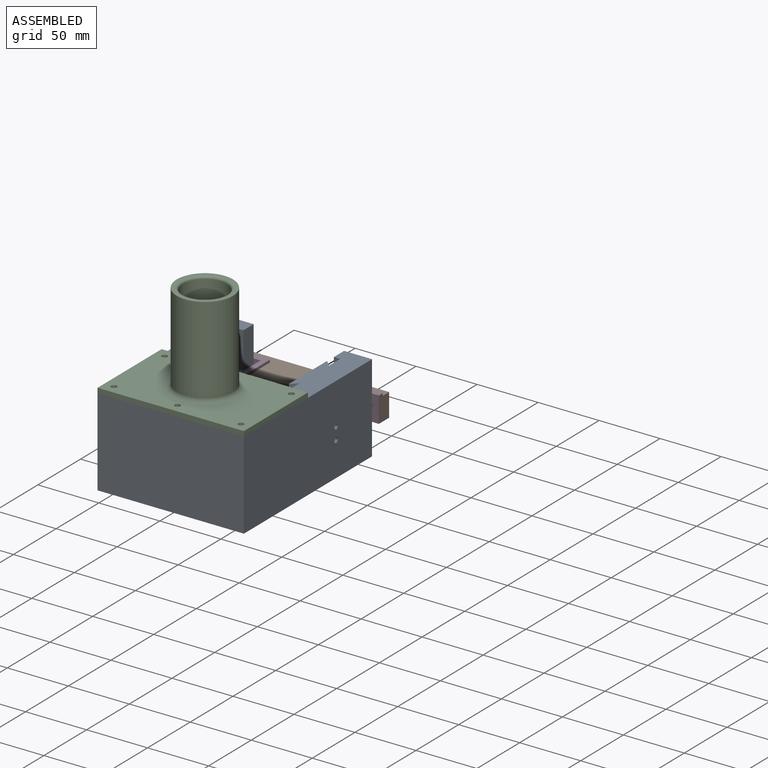
[diagram: assembled view]
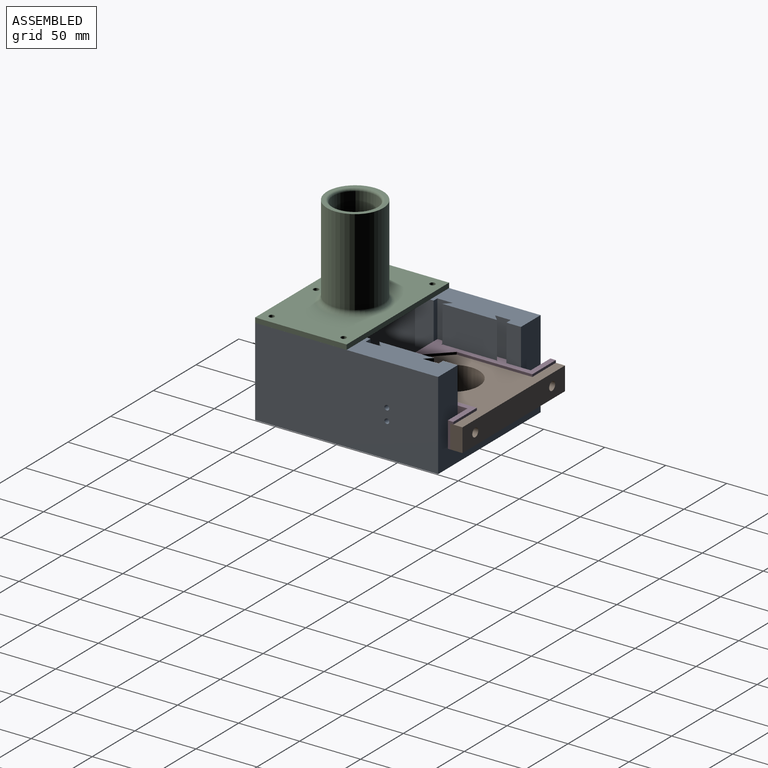
[diagram: assembled view, second angle]
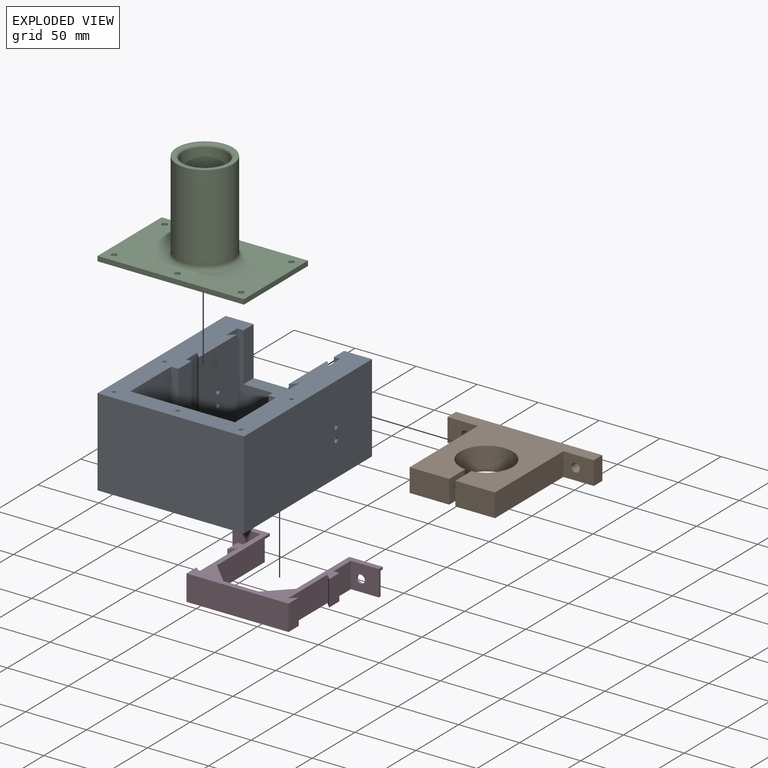
[diagram: exploded view]
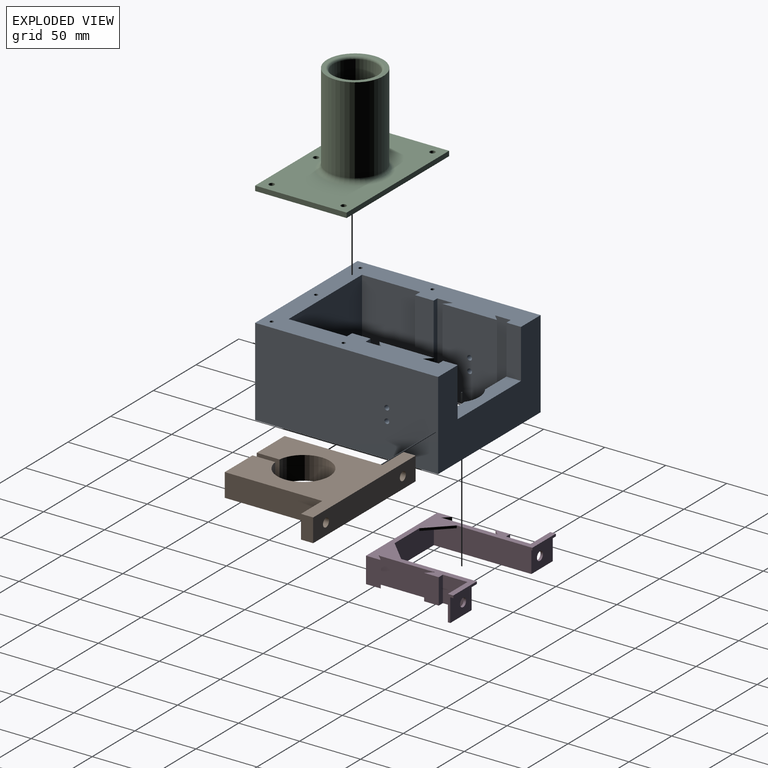
[diagram: exploded view, second angle]
ASSEMBLY  parts=4 mates=3
PART A: 68 faces, bbox 120x150x72 mm
  f0: plane 84x70mm, normal (0,1,0), area 1816.8mm2, adj f1,f8,f9,f27,f40,f41,f43
  f1: plane 102x68.7mm, normal (0,0,-1), area 2309.8mm2, adj f0,f7,f8,f9,f10,f11,f12,f13
  f2: plane 40x11.95mm, normal (1,0,0), area 478mm2, adj f16,f20,f27,f29
  f3: plane 40x11.95mm, normal (-1,0,0), area 478mm2, adj f20,f21,f27,f29
  f4: plane 85.88x70mm, normal (0,-1,0), area 2317.5mm2, adj f5,f26,f27,f40,f41,f42,f44
  f5: plane 70x47.8mm, normal (-1,0,0), area 3346mm2, adj f4,f6,f27,f44
  f6: plane 85.88x70mm, normal (0,1,0), area 6011.3mm2, adj f5,f26,f27,f44
  f7: plane 70x5.15mm, normal (0.71,-0.71,0), area 509.8mm2, adj f1,f8,f25,f27
  f8: plane 70x12.7mm, normal (-1,0,0), area 889.1mm2, adj f0,f1,f7,f27
  f9: plane 70x12.7mm, normal (1,0,0), area 889.1mm2, adj f0,f1,f10,f27
  f10: plane 70x5.15mm, normal (-0.71,-0.71,0), area 509.8mm2, adj f1,f9,f11,f27
  f11: plane 70x44.9mm, normal (1,0,0), area 3117.9mm2, adj f1,f10,f12,f27,f56,f57
  f12: plane 70x5.15mm, normal (-0.71,0.71,0), area 509.8mm2, adj f1,f11,f13,f27
  f13: plane 70x0.06mm, normal (1,0,0), area 4.5mm2, adj f1,f12,f14,f27
  f14: plane 70x0.1mm, normal (0,1,0), area 7mm2, adj f1,f13,f15,f27
  f15: plane 70x12.68mm, normal (1,0,0), area 887.9mm2, adj f1,f14,f16,f27
  f16: plane 70x30.09mm, normal (0,-1,0), area 1104.6mm2, adj f1,f2,f15,f27,f28,f29
  f17: plane 150x72mm, normal (-1,0,0), area 10774.9mm2, adj f18,f20,f27,f45,f56,f57
  f18: plane 120x72mm, normal (0,-1,0), area 8640mm2, adj f17,f19,f27,f45
  f19: plane 150x72mm, normal (1,0,0), area 10774.9mm2, adj f18,f20,f27,f45,f58,f59
  f20: plane 120x72mm, normal (0,1,0), area 5676mm2, adj f2,f3,f17,f19,f27,f29,f45
  f21: plane 70x30.18mm, normal (0,-1,0), area 1111.5mm2, adj f1,f3,f22,f27,f28,f29
  f22: plane 70x12.75mm, normal (-1,0,0), area 892.4mm2, adj f1,f21,f23,f27
  f23: plane 70x0.2mm, normal (0,1,0), area 14mm2, adj f1,f22,f24,f27
  f24: plane 70x5.15mm, normal (0.71,0.71,0), area 509.8mm2, adj f1,f23,f25,f27
  f25: plane 70x44.9mm, normal (-1,0,0), area 3117.9mm2, adj f1,f7,f24,f27,f58,f59
  f26: plane 70x47.8mm, normal (1,0,0), area 3346mm2, adj f4,f6,f27,f44
  f27: plane 150x120mm, normal (0,0,1), area 7212.8mm2, adj f0,f2,f3,f4,f5,f6,f7,f8
  f28: cylinder r=21.5mm len=30mm, axis (0,0,-1), area 643.7mm2, adj f1,f16,f21,f29,f30,f38,f65
  f29: plane 74.1x11.95mm, normal (0,0,1), area 825.6mm2, adj f2,f3,f16,f20,f21,f28
  f30: plane 47.92x19.5mm, normal (0,1,0), area 934.5mm2, adj f1,f28,f31,f65
  f31: plane 68.7x19.5mm, normal (-1,0,0), area 1339.7mm2, adj f1,f30,f32,f64
  f32: plane 102x19.5mm, normal (0,-1,0), area 1989mm2, adj f1,f31,f33,f62
  f33: plane 68.7x19.5mm, normal (1,0,0), area 1339.7mm2, adj f1,f32,f38,f67
  f34: plane 78.7x21.5mm, normal (-1,0,0), area 1692mm2, adj f35,f37,f45,f66
  f35: plane 112x21.5mm, normal (0,1,0), area 2408mm2, adj f34,f36,f45,f60
  f36: plane 78.7x21.5mm, normal (1,0,0), area 1692mm2, adj f35,f37,f45,f61
  f37: plane 112x21.5mm, normal (0,-1,0), area 2408mm2, adj f34,f36,f45,f63
  f38: plane 47.92x19.5mm, normal (0,1,0), area 934.5mm2, adj f1,f28,f33,f65
  f39: plane 73.88x0.7mm, normal (0,0,1), area 51.7mm2, adj f40,f41,f43,f62
  f40: plane 55x15.2mm, normal (-1,0,0), area 761.4mm2, adj f0,f4,f27,f39,f42,f43,f60,f62
  f41: plane 55x15.2mm, normal (1,0,0), area 761.4mm2, adj f0,f4,f27,f39,f42,f43,f60,f62
  f42: plane 73.88x5.5mm, normal (0,0,1), area 406.3mm2, adj f4,f40,f41,f60
  f43: cylinder r=5mm len=73.88mm, axis (1,0,0), area 580.2mm2, adj f0,f39,f40,f41
  f44: plane 85.88x47.8mm, normal (0,0,1), area 4104.9mm2, adj f4,f5,f6,f26
  f45: plane 150x120mm, normal (0,0,-1), area 9185.6mm2, adj f17,f18,f19,f20,f34,f35,f36,f37
  f46: cylinder r=1.5mm len=14mm, axis (0,0,1), area 131.9mm2, adj f27,f47
  f47: plane 3x3mm, normal (0,0,1), area 7.1mm2, adj f46
  f48: cylinder r=1.5mm len=14mm, axis (0,0,1), area 131.9mm2, adj f27,f49
  f49: plane 3x3mm, normal (0,0,1), area 7.1mm2, adj f48
  f50: cylinder r=1.5mm len=14mm, axis (0,0,1), area 131.9mm2, adj f27,f51
  f51: plane 3x3mm, normal (0,0,1), area 7.1mm2, adj f50
  f52: cylinder r=1.5mm len=14mm, axis (0,0,1), area 131.9mm2, adj f27,f53
  f53: plane 3x3mm, normal (0,0,1), area 7.1mm2, adj f52
  f54: cylinder r=1.5mm len=14mm, axis (0,0,1), area 131.9mm2, adj f27,f55
  f55: plane 3x3mm, normal (0,0,1), area 7.1mm2, adj f54
  f56: cylinder r=2mm len=23.15mm, axis (-1,0,0), area 290.9mm2, adj f11,f17
  f57: cylinder r=2mm len=23.15mm, axis (-1,0,0), area 290.9mm2, adj f11,f17
  f58: cylinder r=2mm len=23.15mm, axis (1,0,0), area 290.9mm2, adj f19,f25
  f59: cylinder r=2mm len=23.15mm, axis (1,0,0), area 290.9mm2, adj f19,f25
  f60: plane 112x2.5mm, normal (0,0.71,-0.71), area 178.2mm2, adj f35,f40,f41,f42,f61,f62,f66
  f61: plane 78.7x2.5mm, normal (0.71,0,-0.71), area 269.4mm2, adj f36,f60,f63,f64
  f62: plane 107x2.5mm, normal (0,-0.71,-0.71), area 160.5mm2, adj f32,f39,f40,f41,f60,f64,f67
  f63: plane 112x2.5mm, normal (0,-0.71,-0.71), area 387.1mm2, adj f37,f61,f65,f66
  f64: plane 73.7x2.5mm, normal (-0.71,0,-0.71), area 251.7mm2, adj f31,f61,f62,f65
  f65: plane 107x2.5mm, normal (0,0.71,-0.71), area 368.2mm2, adj f28,f30,f38,f63,f64,f67
  f66: plane 78.7x2.5mm, normal (-0.71,0,-0.71), area 269.4mm2, adj f34,f60,f63,f67
  f67: plane 73.7x2.5mm, normal (0.71,0,-0.71), area 251.7mm2, adj f33,f62,f65,f66
PART B: 16 faces, bbox 120x90x19.1 mm
  f0: plane 32.5x19.05mm, normal (0,-1,0), area 619.1mm2, adj f1,f11,f12,f13
  f1: plane 19.05x18.65mm, normal (1,0,0), area 355.2mm2, adj f0,f2,f12,f13
  f2: cylinder r=21.5mm len=43mm, axis (0,0,-1), area 2478mm2, adj f1,f3,f12,f13
  f3: plane 19.05x18.65mm, normal (-1,0,0), area 355.2mm2, adj f2,f4,f12,f13
  f4: plane 32.5x19.05mm, normal (0,-1,0), area 619.1mm2, adj f3,f5,f12,f13
  f5: plane 80x19.05mm, normal (1,0,0), area 1524mm2, adj f4,f6,f12,f13
  f6: plane 25x19.05mm, normal (0,-1,0), area 437.8mm2, adj f5,f7,f12,f13,f15
  f7: plane 19.05x10mm, normal (1,0,0), area 190.5mm2, adj f6,f8,f12,f13
  f8: plane 120x19.05mm, normal (0,1,0), area 2209mm2, adj f7,f9,f12,f13,f14,f15
  f9: plane 19.05x10mm, normal (-1,0,0), area 190.5mm2, adj f8,f10,f12,f13
  f10: plane 25x19.05mm, normal (0,-1,0), area 437.8mm2, adj f9,f11,f12,f13,f14
  f11: plane 80x19.05mm, normal (-1,0,0), area 1524mm2, adj f0,f10,f12,f13
  f12: plane 120x90mm, normal (0,0,1), area 5255.1mm2, adj f0,f1,f2,f3,f4,f5,f6,f7
  f13: plane 120x90mm, normal (0,0,-1), area 5255.1mm2, adj f0,f1,f2,f3,f4,f5,f6,f7
  f14: cylinder r=3.5mm len=10mm, axis (0,1,0), area 219.9mm2, adj f8,f10
  f15: cylinder r=3.5mm len=10mm, axis (0,1,0), area 219.9mm2, adj f6,f8
PART C: 19 faces, bbox 120x75x79 mm
  f0: cylinder r=18mm len=36mm, axis (0,0,-1), area 3619.1mm2, adj f16,f18
  f1: plane 75x4mm, normal (-1,0,0), area 300mm2, adj f2,f8,f10,f11
  f2: plane 120x4mm, normal (0,-1,0), area 480mm2, adj f1,f3,f10,f11
  f3: plane 75x4mm, normal (1,0,0), area 300mm2, adj f2,f8,f10,f11
  f4: cylinder r=2.25mm len=4.5mm, axis (0,0,-1), area 56.5mm2, adj f10,f11
  f5: cylinder r=2.25mm len=4.5mm, axis (0,0,-1), area 56.5mm2, adj f10,f11
  f6: cylinder r=2.25mm len=4.5mm, axis (0,0,-1), area 56.5mm2, adj f10,f11
  f7: cylinder r=2.25mm len=4.5mm, axis (0,0,-1), area 56.5mm2, adj f10,f11
  f8: plane 120x4mm, normal (0,1,0), area 480mm2, adj f1,f3,f10,f11
  f9: cylinder r=2.25mm len=4.5mm, axis (0,0,-1), area 56.5mm2, adj f10,f11
  f10: plane 120x75mm, normal (0,0,1), area 6630.3mm2, adj f1,f2,f3,f4,f5,f6,f7,f8
  f11: plane 120x75mm, normal (0,0,-1), area 7567.8mm2, adj f1,f2,f3,f4,f5,f6,f7,f8
  f12: cylinder r=23mm len=71mm, axis (0,0,-1), area 10260.4mm2, adj f13,f14
  f13: plane 46x46mm, normal (0,0,1), area 405.3mm2, adj f12,f18
  f14: torus R=27mm, axis (0,0,1), area 965.4mm2, adj f10,f12
  f15: cylinder r=17.75mm len=42mm, axis (0,0,-1), area 4684.1mm2, adj f16,f17
  f16: plane 36x36mm, normal (0,0,1), area 28.1mm2, adj f0,f15
  f17: torus R=20.75mm, axis (0,0,1), area 557.8mm2, adj f11,f15
  f18: torus R=20mm, axis (0,0,1), area 369.7mm2, adj f0,f13
PART D: 40 faces, bbox 120x84.3x21.1 mm
  f0: plane 120x84.3mm, normal (0,0,1), area 1734.7mm2, adj f2,f3,f9,f10,f11,f12,f16,f17
  f1: plane 120x81.8mm, normal (0,0,-1), area 710.7mm2, adj f2,f3,f4,f5,f6,f7,f8,f9
  f2: plane 21.05x20.2mm, normal (-1,0,0), area 425.2mm2, adj f0,f1,f10,f27
  f3: plane 21.05x4.5mm, normal (1,0,0), area 47.1mm2, adj f0,f1,f4,f12,f15,f16
  f4: plane 25x19.05mm, normal (0,1,0), area 437.8mm2, adj f1,f3,f5,f13,f15
  f5: plane 80x19.05mm, normal (-1,0,0), area 1524mm2, adj f1,f4,f6,f15
  f6: plane 70x19.05mm, normal (0,1,0), area 1333.5mm2, adj f1,f5,f7,f15
  f7: plane 80x19.05mm, normal (1,0,0), area 1524mm2, adj f1,f6,f8,f15
  f8: plane 25x19.05mm, normal (0,1,0), area 437.8mm2, adj f1,f7,f9,f14,f15
  f9: plane 21.05x4.5mm, normal (-1,0,0), area 47.1mm2, adj f0,f1,f8,f10,f15,f22
  f10: plane 23x21.05mm, normal (0,-1,0), area 445.7mm2, adj f0,f1,f2,f9,f14
  f11: plane 21.05x20.2mm, normal (1,0,0), area 425.2mm2, adj f0,f1,f12,f37
  f12: plane 23x21.05mm, normal (0,-1,0), area 445.7mm2, adj f0,f1,f3,f11,f13
  f13: cylinder r=3.5mm len=7mm, axis (0,1,0), area 44mm2, adj f4,f12
  f14: cylinder r=3.5mm len=7mm, axis (0,1,0), area 44mm2, adj f8,f10
  f15: plane 120x82.5mm, normal (0,0,-1), area 1024mm2, adj f3,f4,f5,f6,f7,f8,f9,f16
  f16: plane 27.5x2mm, normal (0,1,0), area 55mm2, adj f0,f3,f15,f17
  f17: plane 62x2mm, normal (-1,0,0), area 124mm2, adj f0,f15,f16,f18
  f18: plane 18x18mm, normal (-0.71,0.71,0), area 50.9mm2, adj f0,f15,f17,f19
  f19: plane 29x2mm, normal (0,1,0), area 58mm2, adj f0,f15,f18,f20
  f20: plane 18x18mm, normal (0.71,0.71,0), area 50.9mm2, adj f0,f15,f19,f21
  f21: plane 62x2mm, normal (1,0,0), area 124mm2, adj f0,f15,f20,f22
  f22: plane 27.5x2mm, normal (0,1,0), area 55mm2, adj f0,f9,f15,f21
  f23: plane 44.3x21.05mm, normal (1,0,0), area 932.5mm2, adj f0,f1,f34,f39
  f24: plane 44.3x21.05mm, normal (-1,0,0), area 932.5mm2, adj f0,f1,f28,f35
  f25: plane 21.05x4.66mm, normal (0.71,-0.71,0), area 138.6mm2, adj f0,f1,f26,f28
  f26: plane 21.05x12.02mm, normal (-1,0,0), area 252.9mm2, adj f0,f1,f25,f27
  f27: plane 21.05x4.8mm, normal (0,1,0), area 101mm2, adj f0,f1,f2,f26
  f28: cylinder r=0.35mm len=21.05mm, axis (0,0,1), area 36mm2, adj f0,f1,f24,f25
  f29: plane 21.05x4.66mm, normal (-0.71,0.71,0), area 138.6mm2, adj f0,f1,f30,f34
  f30: plane 21.05x12.02mm, normal (1,0,0), area 253mm2, adj f0,f1,f29,f31
  f31: plane 83.6x21.05mm, normal (0,-1,0), area 1759.8mm2, adj f0,f1,f30,f32
  f32: plane 21.05x12.02mm, normal (-1,0,0), area 253mm2, adj f0,f1,f31,f33
  f33: plane 21.05x4.66mm, normal (0.71,0.71,0), area 138.6mm2, adj f0,f1,f32,f35
  f34: cylinder r=0.35mm len=21.05mm, axis (0,0,1), area 36mm2, adj f0,f1,f23,f29
  f35: cylinder r=0.35mm len=21.05mm, axis (0,0,1), area 36mm2, adj f0,f1,f24,f33
  f36: plane 21.05x4.66mm, normal (-0.71,-0.71,0), area 138.6mm2, adj f0,f1,f38,f39
  f37: plane 21.05x4.8mm, normal (0,1,0), area 101mm2, adj f0,f1,f11,f38
  f38: plane 21.05x12.02mm, normal (1,0,0), area 252.9mm2, adj f0,f1,f36,f37
  f39: cylinder r=0.35mm len=21.05mm, axis (0,0,1), area 36mm2, adj f0,f1,f23,f36
PLACE A t=(0,0,10.93)mm
PLACE B t=(0,0,-19.05)mm
PLACE C t=(-25,-80,31.98)mm
PLACE D t=(0,0,-19.05)mm
MATE slider A.f27 <-> D.f0  axis (0,0,1) through (71.85,28,31.98)mm
MATE fastened A.f27 <-> C.f11  axis (0,0,1) through (-25,-80,31.98)mm
MATE slider D.f13 <-> B.f15  axis (0,1,0) through (80,80,-9.52)mm
